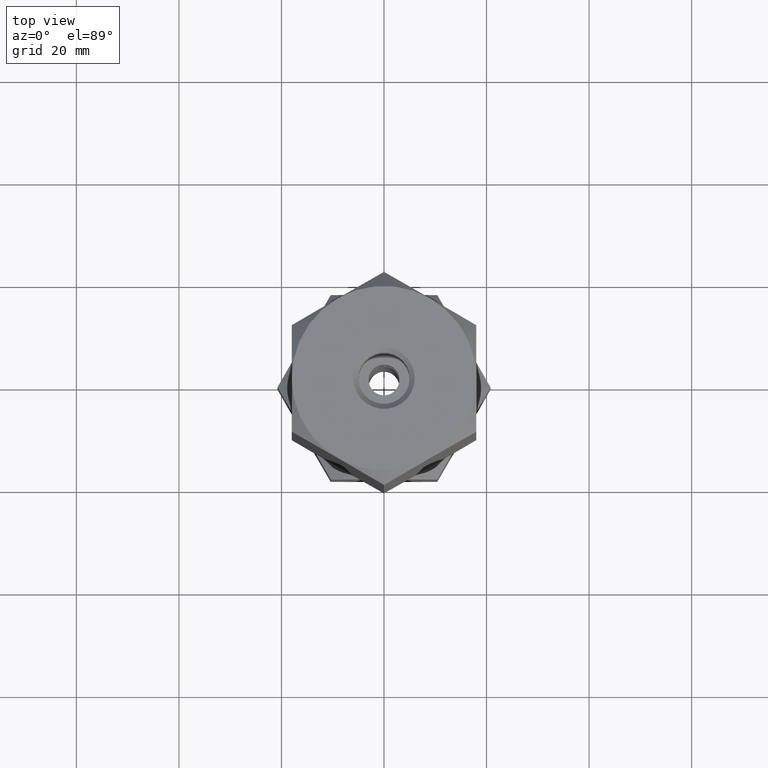
[diagram: clean part render]
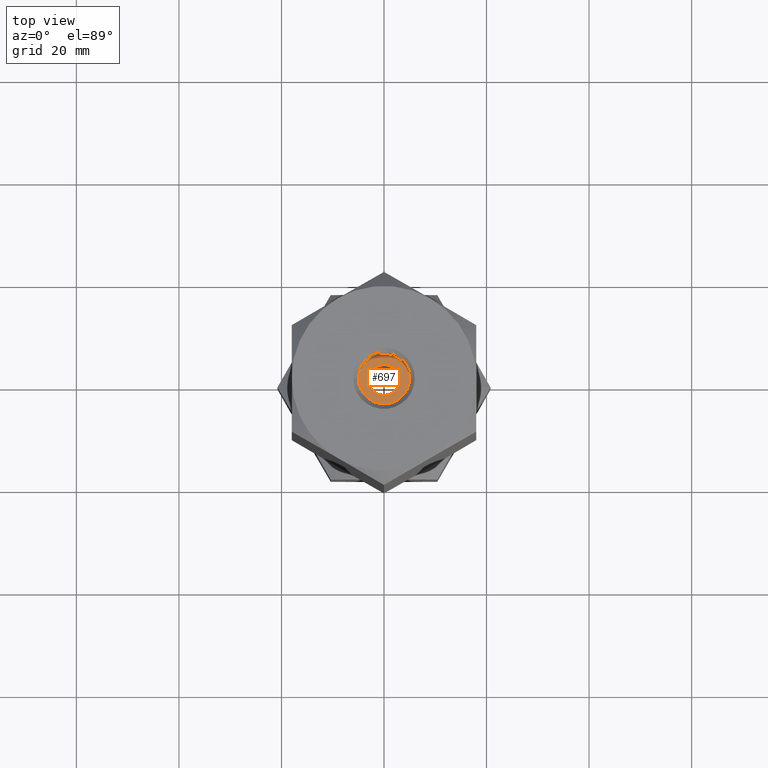
[diagram: same view with one face highlighted and labeled with its STEP entity id]
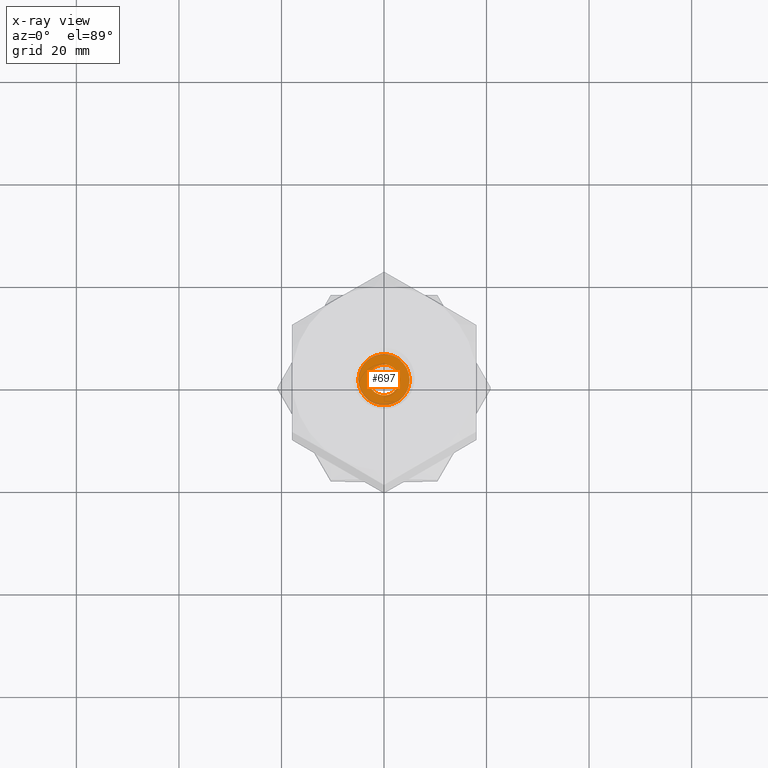
[diagram: x-ray of the same camera — body ghosted, the highlighted face saturated]
A machine part, top view. The second image highlights one B-rep face of the part: STEP entity #697.
The next image is the same camera in x-ray: the body ghosted, the highlighted face saturated — about 7% of this face is hidden behind the body in this view.
In plain terms, the highlighted planar face has unit normal (0, 0, 1).
Its self-contained STEP definition (entity closure, byte-faithful):
#15 = CIRCLE ( 'NONE', #1342, 3.000000000000000444 ) ;
#65 = EDGE_LOOP ( 'NONE', ( #404, #1145 ) ) ;
#121 = DIRECTION ( 'NONE',  ( 0.000000000000000000, 0.000000000000000000, 1.000000000000000000 ) ) ;
#134 = CARTESIAN_POINT ( 'NONE',  ( 0.000000000000000000, 0.000000000000000000, 110.0000000000000000 ) ) ;
#151 = AXIS2_PLACEMENT_3D ( 'NONE', #1873, #457, #1719 ) ;
#250 = AXIS2_PLACEMENT_3D ( 'NONE', #1152, #1286, #1936 ) ;
#261 = VERTEX_POINT ( 'NONE', #642 ) ;
#329 = DIRECTION ( 'NONE',  ( 0.000000000000000000, 0.000000000000000000, 1.000000000000000000 ) ) ;
#334 = ORIENTED_EDGE ( 'NONE', *, *, #744, .F. ) ;
#340 = VERTEX_POINT ( 'NONE', #1428 ) ;
#404 = ORIENTED_EDGE ( 'NONE', *, *, #1989, .T. ) ;
#413 = EDGE_LOOP ( 'NONE', ( #698, #334 ) ) ;
#457 = DIRECTION ( 'NONE',  ( 0.000000000000000000, 0.000000000000000000, 1.000000000000000000 ) ) ;
#477 = EDGE_CURVE ( 'NONE', #833, #340, #1531, .T. ) ;
#568 = CARTESIAN_POINT ( 'NONE',  ( 3.000000000000000444, 0.000000000000000000, 110.0000000000000000 ) ) ;
#587 = DIRECTION ( 'NONE',  ( 1.000000000000000000, 0.000000000000000000, 0.000000000000000000 ) ) ;
#642 = CARTESIAN_POINT ( 'NONE',  ( -5.000000000000000000, 6.123233995736766282E-16, 110.0000000000000000 ) ) ;
#697 = ADVANCED_FACE ( 'NONE', ( #1138, #1393 ), #1865, .T. ) ;
#698 = ORIENTED_EDGE ( 'NONE', *, *, #477, .F. ) ;
#708 = AXIS2_PLACEMENT_3D ( 'NONE', #1942, #121, #587 ) ;
#744 = EDGE_CURVE ( 'NONE', #340, #833, #15, .T. ) ;
#758 = DIRECTION ( 'NONE',  ( 1.000000000000000000, 0.000000000000000000, 0.000000000000000000 ) ) ;
#761 = DIRECTION ( 'NONE',  ( 1.000000000000000000, 0.000000000000000000, 0.000000000000000000 ) ) ;
#833 = VERTEX_POINT ( 'NONE', #568 ) ;
#906 = EDGE_CURVE ( 'NONE', #261, #1946, #1596, .T. ) ;
#1096 = AXIS2_PLACEMENT_3D ( 'NONE', #2005, #329, #761 ) ;
#1138 = FACE_BOUND ( 'NONE', #413, .T. ) ;
#1145 = ORIENTED_EDGE ( 'NONE', *, *, #906, .T. ) ;
#1152 = CARTESIAN_POINT ( 'NONE',  ( 0.000000000000000000, 0.000000000000000000, 110.0000000000000000 ) ) ;
#1286 = DIRECTION ( 'NONE',  ( 0.000000000000000000, 0.000000000000000000, 1.000000000000000000 ) ) ;
#1342 = AXIS2_PLACEMENT_3D ( 'NONE', #134, #1535, #758 ) ;
#1393 = FACE_OUTER_BOUND ( 'NONE', #65, .T. ) ;
#1428 = CARTESIAN_POINT ( 'NONE',  ( -3.000000000000000444, 3.673940397442060361E-16, 110.0000000000000000 ) ) ;
#1500 = CIRCLE ( 'NONE', #1096, 5.000000000000000000 ) ;
#1531 = CIRCLE ( 'NONE', #250, 3.000000000000000444 ) ;
#1535 = DIRECTION ( 'NONE',  ( 0.000000000000000000, 0.000000000000000000, 1.000000000000000000 ) ) ;
#1596 = CIRCLE ( 'NONE', #708, 5.000000000000000000 ) ;
#1693 = CARTESIAN_POINT ( 'NONE',  ( 5.000000000000000000, 0.000000000000000000, 110.0000000000000000 ) ) ;
#1719 = DIRECTION ( 'NONE',  ( 1.000000000000000000, 0.000000000000000000, -0.000000000000000000 ) ) ;
#1865 = PLANE ( 'NONE',  #151 ) ;
#1873 = CARTESIAN_POINT ( 'NONE',  ( 0.000000000000000000, 0.000000000000000000, 110.0000000000000000 ) ) ;
#1936 = DIRECTION ( 'NONE',  ( 1.000000000000000000, 0.000000000000000000, 0.000000000000000000 ) ) ;
#1942 = CARTESIAN_POINT ( 'NONE',  ( 0.000000000000000000, 0.000000000000000000, 110.0000000000000000 ) ) ;
#1946 = VERTEX_POINT ( 'NONE', #1693 ) ;
#1989 = EDGE_CURVE ( 'NONE', #1946, #261, #1500, .T. ) ;
#2005 = CARTESIAN_POINT ( 'NONE',  ( 0.000000000000000000, 0.000000000000000000, 110.0000000000000000 ) ) ;